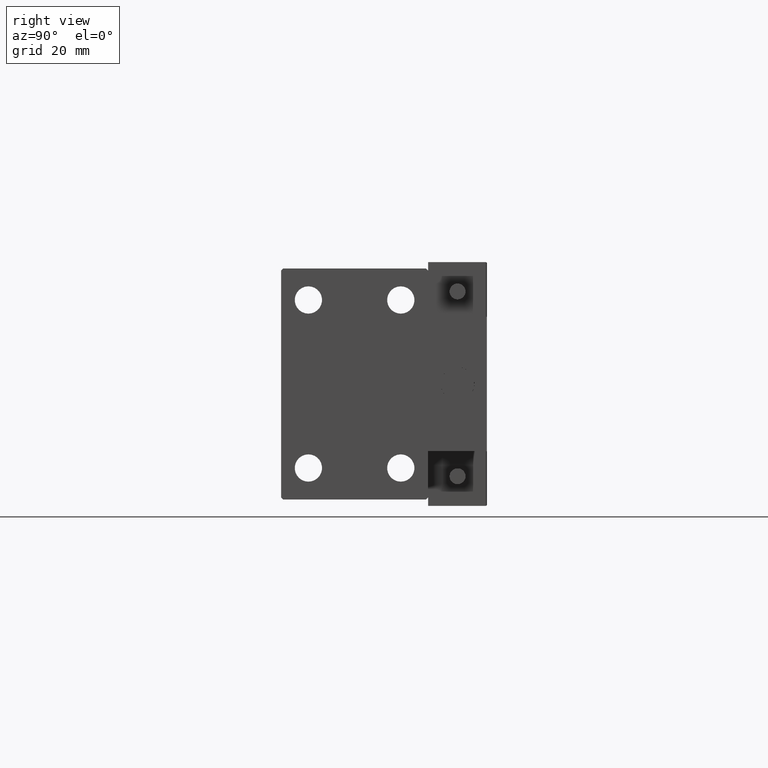
[diagram: clean part render]
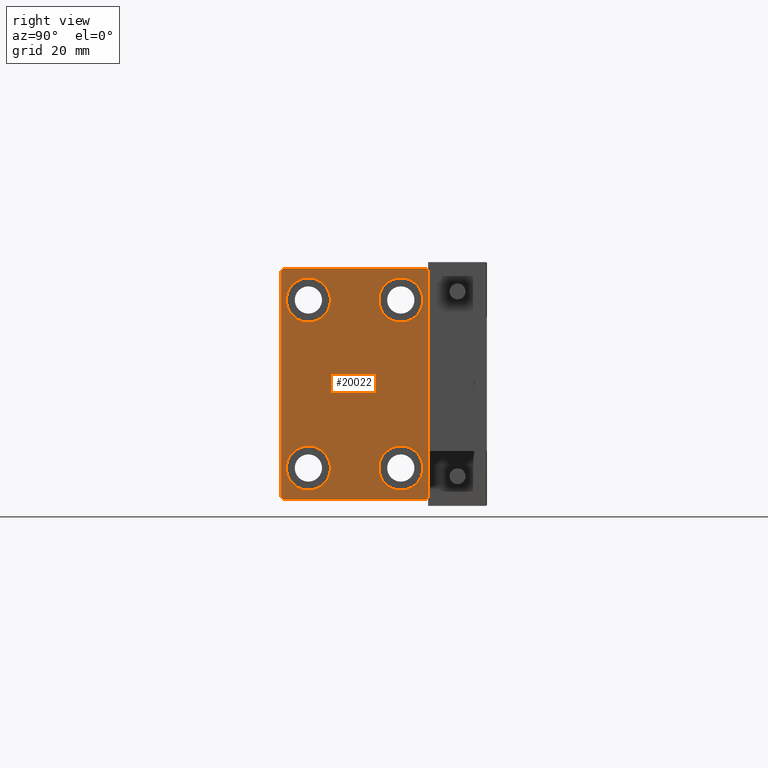
[diagram: same view with one face highlighted and labeled with its STEP entity id]
A machine part, right view. The second image highlights one B-rep face of the part: STEP entity #20022.
In plain terms, the highlighted planar face has unit normal (1, 0, 0).
Its self-contained STEP definition (entity closure, byte-faithful):
#73 = EDGE_CURVE ( 'NONE', #5430, #42371, #233, .T. ) ;
#233 = LINE ( 'NONE', #35253, #49768 ) ;
#400 = CARTESIAN_POINT ( 'NONE',  ( 86.00000000000000000, 17.00000000000000711, -27.50000000000000355 ) ) ;
#744 = VERTEX_POINT ( 'NONE', #16504 ) ;
#1340 = CARTESIAN_POINT ( 'NONE',  ( 86.00000000000000000, 17.50000000000000000, 27.50000000000000355 ) ) ;
#1959 = DIRECTION ( 'NONE',  ( 0.000000000000000000, 1.000000000000000000, 0.000000000000000000 ) ) ;
#2185 = EDGE_CURVE ( 'NONE', #36022, #744, #5288, .T. ) ;
#2590 = DIRECTION ( 'NONE',  ( -0.000000000000000000, 0.7071067811865474617, -0.7071067811865474617 ) ) ;
#3493 = DIRECTION ( 'NONE',  ( 0.000000000000000000, 0.000000000000000000, 1.000000000000000000 ) ) ;
#3564 = EDGE_CURVE ( 'NONE', #17908, #50006, #20653, .T. ) ;
#4225 = ORIENTED_EDGE ( 'NONE', *, *, #15708, .T. ) ;
#4257 = DIRECTION ( 'NONE',  ( -1.000000000000000000, -0.000000000000000000, -0.000000000000000000 ) ) ;
#4689 = DIRECTION ( 'NONE',  ( 0.000000000000000000, 0.000000000000000000, 1.000000000000000000 ) ) ;
#4805 = ORIENTED_EDGE ( 'NONE', *, *, #8051, .T. ) ;
#5288 = CIRCLE ( 'NONE', #13388, 5.250000000000000888 ) ;
#5430 = VERTEX_POINT ( 'NONE', #36375 ) ;
#5762 = VERTEX_POINT ( 'NONE', #36073 ) ;
#5937 = EDGE_CURVE ( 'NONE', #43645, #27905, #31266, .T. ) ;
#6061 = CARTESIAN_POINT ( 'NONE',  ( 86.00000000000000000, 22.25000000000000711, -22.25000000000000711 ) ) ;
#6224 = DIRECTION ( 'NONE',  ( 0.000000000000000000, 0.000000000000000000, 1.000000000000000000 ) ) ;
#6489 = EDGE_CURVE ( 'NONE', #5762, #6943, #20730, .T. ) ;
#6625 = EDGE_CURVE ( 'NONE', #27905, #43645, #9395, .T. ) ;
#6874 = ORIENTED_EDGE ( 'NONE', *, *, #47742, .T. ) ;
#6943 = VERTEX_POINT ( 'NONE', #37018 ) ;
#7230 = VECTOR ( 'NONE', #49530, 1000.000000000000000 ) ;
#7948 = VECTOR ( 'NONE', #2590, 1000.000000000000114 ) ;
#8051 = EDGE_CURVE ( 'NONE', #50006, #11998, #10636, .T. ) ;
#8676 = DIRECTION ( 'NONE',  ( -1.000000000000000000, -0.000000000000000000, -0.000000000000000000 ) ) ;
#8800 = DIRECTION ( 'NONE',  ( 0.000000000000000000, 0.000000000000000000, 1.000000000000000000 ) ) ;
#9004 = CARTESIAN_POINT ( 'NONE',  ( 86.00000000000000000, 11.00000000000000355, -20.00000000000000000 ) ) ;
#9173 = ORIENTED_EDGE ( 'NONE', *, *, #47481, .T. ) ;
#9395 = CIRCLE ( 'NONE', #27237, 5.250000000000000888 ) ;
#9564 = LINE ( 'NONE', #36722, #37117 ) ;
#9569 = FACE_BOUND ( 'NONE', #15810, .T. ) ;
#10636 = LINE ( 'NONE', #14425, #17540 ) ;
#10776 = DIRECTION ( 'NONE',  ( -1.000000000000000000, -0.000000000000000000, -0.000000000000000000 ) ) ;
#11998 = VERTEX_POINT ( 'NONE', #48551 ) ;
#12685 = ORIENTED_EDGE ( 'NONE', *, *, #2185, .T. ) ;
#13388 = AXIS2_PLACEMENT_3D ( 'NONE', #24830, #21015, #3493 ) ;
#13464 = CARTESIAN_POINT ( 'NONE',  ( 86.00000000000000000, -11.00000000000000355, -20.00000000000000000 ) ) ;
#13606 = CARTESIAN_POINT ( 'NONE',  ( 86.00000000000000000, 11.00000000000000355, -20.00000000000000000 ) ) ;
#14361 = CARTESIAN_POINT ( 'NONE',  ( 86.00000000000000000, 11.00000000000000355, -25.25000000000000000 ) ) ;
#14394 = CARTESIAN_POINT ( 'NONE',  ( 86.00000000000000000, -11.00000000000000355, 25.25000000000000000 ) ) ;
#14425 = CARTESIAN_POINT ( 'NONE',  ( 86.00000000000000000, 22.25000000000000711, 22.25000000000000711 ) ) ;
#14759 = AXIS2_PLACEMENT_3D ( 'NONE', #13606, #21751, #41519 ) ;
#15708 = EDGE_CURVE ( 'NONE', #47943, #46719, #41398, .T. ) ;
#15810 = EDGE_LOOP ( 'NONE', ( #35314, #43470 ) ) ;
#15871 = ORIENTED_EDGE ( 'NONE', *, *, #73, .T. ) ;
#16134 = ORIENTED_EDGE ( 'NONE', *, *, #50068, .T. ) ;
#16380 = CIRCLE ( 'NONE', #30966, 5.250000000000000888 ) ;
#16504 = CARTESIAN_POINT ( 'NONE',  ( 86.00000000000000000, -11.00000000000000355, -14.75000000000000000 ) ) ;
#16691 = CARTESIAN_POINT ( 'NONE',  ( 86.00000000000000000, 17.50000000000000711, -27.00000000000000355 ) ) ;
#16696 = CARTESIAN_POINT ( 'NONE',  ( 86.00000000000000000, 11.00000000000000355, -14.75000000000000000 ) ) ;
#16804 = LINE ( 'NONE', #1340, #22134 ) ;
#17528 = EDGE_CURVE ( 'NONE', #42371, #47943, #40668, .T. ) ;
#17540 = VECTOR ( 'NONE', #49929, 1000.000000000000114 ) ;
#17567 = CARTESIAN_POINT ( 'NONE',  ( 86.00000000000000000, -11.00000000000000355, -25.25000000000000000 ) ) ;
#17683 = FACE_BOUND ( 'NONE', #24083, .T. ) ;
#17908 = VERTEX_POINT ( 'NONE', #16691 ) ;
#18338 = CARTESIAN_POINT ( 'NONE',  ( 86.00000000000000000, -17.50000000000000000, 27.49999999999999645 ) ) ;
#20022 = ADVANCED_FACE ( 'NONE', ( #31746, #9569, #44847, #17683, #35550 ), #21508, .T. ) ;
#20592 = CARTESIAN_POINT ( 'NONE',  ( 86.00000000000000000, -11.00000000000000355, 20.00000000000000000 ) ) ;
#20653 = LINE ( 'NONE', #28530, #45736 ) ;
#20730 = CIRCLE ( 'NONE', #43410, 5.250000000000000888 ) ;
#21015 = DIRECTION ( 'NONE',  ( -1.000000000000000000, -0.000000000000000000, -0.000000000000000000 ) ) ;
#21347 = DIRECTION ( 'NONE',  ( 0.000000000000000000, 0.000000000000000000, 1.000000000000000000 ) ) ;
#21508 = PLANE ( 'NONE',  #35656 ) ;
#21751 = DIRECTION ( 'NONE',  ( -1.000000000000000000, -0.000000000000000000, -0.000000000000000000 ) ) ;
#22134 = VECTOR ( 'NONE', #48268, 1000.000000000000000 ) ;
#23891 = EDGE_LOOP ( 'NONE', ( #9173, #6874 ) ) ;
#24083 = EDGE_LOOP ( 'NONE', ( #12685, #44278 ) ) ;
#24830 = CARTESIAN_POINT ( 'NONE',  ( 86.00000000000000000, -11.00000000000000355, -20.00000000000000000 ) ) ;
#25832 = DIRECTION ( 'NONE',  ( 1.000000000000000000, 0.000000000000000000, 0.000000000000000000 ) ) ;
#26128 = CIRCLE ( 'NONE', #14759, 5.250000000000000888 ) ;
#26911 = ORIENTED_EDGE ( 'NONE', *, *, #50190, .T. ) ;
#27237 = AXIS2_PLACEMENT_3D ( 'NONE', #20592, #8676, #35344 ) ;
#27293 = DIRECTION ( 'NONE',  ( -1.000000000000000000, -0.000000000000000000, -0.000000000000000000 ) ) ;
#27776 = CIRCLE ( 'NONE', #44802, 5.250000000000000888 ) ;
#27905 = VERTEX_POINT ( 'NONE', #14394 ) ;
#28229 = ORIENTED_EDGE ( 'NONE', *, *, #38815, .T. ) ;
#28530 = CARTESIAN_POINT ( 'NONE',  ( 86.00000000000000000, 17.50000000000000711, -27.50000000000000355 ) ) ;
#28546 = DIRECTION ( 'NONE',  ( 0.000000000000000000, 0.000000000000000000, 1.000000000000000000 ) ) ;
#29912 = DIRECTION ( 'NONE',  ( -0.000000000000000000, 0.7071067811865474617, 0.7071067811865474617 ) ) ;
#30966 = AXIS2_PLACEMENT_3D ( 'NONE', #9004, #43013, #28546 ) ;
#31266 = CIRCLE ( 'NONE', #36892, 5.250000000000000888 ) ;
#31540 = VERTEX_POINT ( 'NONE', #16696 ) ;
#31746 = FACE_BOUND ( 'NONE', #23891, .T. ) ;
#32205 = EDGE_LOOP ( 'NONE', ( #26911, #15871, #50015, #4225, #47510, #28229, #46960, #4805 ) ) ;
#32589 = DIRECTION ( 'NONE',  ( 0.000000000000000000, -1.261617073437677752E-16, 1.000000000000000000 ) ) ;
#33302 = CARTESIAN_POINT ( 'NONE',  ( 86.00000000000000000, -22.25000000000000355, -22.25000000000000355 ) ) ;
#34408 = EDGE_CURVE ( 'NONE', #46719, #47699, #9564, .T. ) ;
#35215 = CARTESIAN_POINT ( 'NONE',  ( 86.00000000000000000, -17.50000000000000000, 26.99999999999999645 ) ) ;
#35253 = CARTESIAN_POINT ( 'NONE',  ( 86.00000000000000000, -22.24999999999999645, 22.24999999999999645 ) ) ;
#35314 = ORIENTED_EDGE ( 'NONE', *, *, #5937, .T. ) ;
#35344 = DIRECTION ( 'NONE',  ( 0.000000000000000000, 0.000000000000000000, 1.000000000000000000 ) ) ;
#35550 = FACE_OUTER_BOUND ( 'NONE', #32205, .T. ) ;
#35656 = AXIS2_PLACEMENT_3D ( 'NONE', #41281, #25832, #47206 ) ;
#36022 = VERTEX_POINT ( 'NONE', #17567 ) ;
#36073 = CARTESIAN_POINT ( 'NONE',  ( 86.00000000000000000, 11.00000000000000355, 25.25000000000000000 ) ) ;
#36375 = CARTESIAN_POINT ( 'NONE',  ( 86.00000000000000000, -17.00000000000000000, 27.49999999999999645 ) ) ;
#36722 = CARTESIAN_POINT ( 'NONE',  ( 86.00000000000000000, -17.50000000000000000, -27.50000000000000355 ) ) ;
#36892 = AXIS2_PLACEMENT_3D ( 'NONE', #37323, #41116, #21347 ) ;
#37018 = CARTESIAN_POINT ( 'NONE',  ( 86.00000000000000000, 11.00000000000000355, 14.75000000000000000 ) ) ;
#37117 = VECTOR ( 'NONE', #1959, 1000.000000000000000 ) ;
#37207 = CARTESIAN_POINT ( 'NONE',  ( 86.00000000000000000, -17.00000000000000000, -27.50000000000000355 ) ) ;
#37323 = CARTESIAN_POINT ( 'NONE',  ( 86.00000000000000000, -11.00000000000000355, 20.00000000000000000 ) ) ;
#38815 = EDGE_CURVE ( 'NONE', #47699, #17908, #45129, .T. ) ;
#39013 = CARTESIAN_POINT ( 'NONE',  ( 86.00000000000000000, 11.00000000000000355, 20.00000000000000000 ) ) ;
#39140 = CIRCLE ( 'NONE', #40758, 5.250000000000000888 ) ;
#39292 = DIRECTION ( 'NONE',  ( 0.000000000000000000, -0.7071067811865474617, -0.7071067811865474617 ) ) ;
#40198 = ORIENTED_EDGE ( 'NONE', *, *, #6489, .T. ) ;
#40451 = CARTESIAN_POINT ( 'NONE',  ( 86.00000000000000000, -17.50000000000000000, -27.00000000000000355 ) ) ;
#40668 = LINE ( 'NONE', #18338, #7230 ) ;
#40715 = CARTESIAN_POINT ( 'NONE',  ( 86.00000000000000000, -11.00000000000000355, 14.75000000000000000 ) ) ;
#40758 = AXIS2_PLACEMENT_3D ( 'NONE', #45538, #10776, #6224 ) ;
#41116 = DIRECTION ( 'NONE',  ( -1.000000000000000000, -0.000000000000000000, -0.000000000000000000 ) ) ;
#41281 = CARTESIAN_POINT ( 'NONE',  ( 86.00000000000000000, 0.000000000000000000, 0.000000000000000000 ) ) ;
#41398 = LINE ( 'NONE', #33302, #7948 ) ;
#41519 = DIRECTION ( 'NONE',  ( 0.000000000000000000, 0.000000000000000000, 1.000000000000000000 ) ) ;
#42371 = VERTEX_POINT ( 'NONE', #35215 ) ;
#43013 = DIRECTION ( 'NONE',  ( -1.000000000000000000, -0.000000000000000000, -0.000000000000000000 ) ) ;
#43410 = AXIS2_PLACEMENT_3D ( 'NONE', #39013, #4257, #8800 ) ;
#43470 = ORIENTED_EDGE ( 'NONE', *, *, #6625, .T. ) ;
#43645 = VERTEX_POINT ( 'NONE', #40715 ) ;
#44278 = ORIENTED_EDGE ( 'NONE', *, *, #45859, .T. ) ;
#44802 = AXIS2_PLACEMENT_3D ( 'NONE', #13464, #27293, #4689 ) ;
#44847 = FACE_BOUND ( 'NONE', #46346, .T. ) ;
#45129 = LINE ( 'NONE', #6061, #46996 ) ;
#45538 = CARTESIAN_POINT ( 'NONE',  ( 86.00000000000000000, 11.00000000000000355, 20.00000000000000000 ) ) ;
#45736 = VECTOR ( 'NONE', #32589, 1000.000000000000000 ) ;
#45859 = EDGE_CURVE ( 'NONE', #744, #36022, #27776, .T. ) ;
#46346 = EDGE_LOOP ( 'NONE', ( #16134, #40198 ) ) ;
#46719 = VERTEX_POINT ( 'NONE', #37207 ) ;
#46731 = VERTEX_POINT ( 'NONE', #14361 ) ;
#46960 = ORIENTED_EDGE ( 'NONE', *, *, #3564, .T. ) ;
#46996 = VECTOR ( 'NONE', #29912, 1000.000000000000114 ) ;
#47206 = DIRECTION ( 'NONE',  ( 0.000000000000000000, 0.000000000000000000, -1.000000000000000000 ) ) ;
#47481 = EDGE_CURVE ( 'NONE', #46731, #31540, #26128, .T. ) ;
#47510 = ORIENTED_EDGE ( 'NONE', *, *, #34408, .T. ) ;
#47699 = VERTEX_POINT ( 'NONE', #400 ) ;
#47742 = EDGE_CURVE ( 'NONE', #31540, #46731, #16380, .T. ) ;
#47943 = VERTEX_POINT ( 'NONE', #40451 ) ;
#48268 = DIRECTION ( 'NONE',  ( 0.000000000000000000, -1.000000000000000000, -1.982541115402065110E-16 ) ) ;
#48551 = CARTESIAN_POINT ( 'NONE',  ( 86.00000000000000000, 17.00000000000001421, 27.50000000000000355 ) ) ;
#48833 = CARTESIAN_POINT ( 'NONE',  ( 86.00000000000000000, 17.50000000000000000, 27.00000000000001776 ) ) ;
#49530 = DIRECTION ( 'NONE',  ( 0.000000000000000000, 0.000000000000000000, -1.000000000000000000 ) ) ;
#49768 = VECTOR ( 'NONE', #39292, 1000.000000000000114 ) ;
#49929 = DIRECTION ( 'NONE',  ( -0.000000000000000000, -0.7071067811865474617, 0.7071067811865474617 ) ) ;
#50006 = VERTEX_POINT ( 'NONE', #48833 ) ;
#50015 = ORIENTED_EDGE ( 'NONE', *, *, #17528, .T. ) ;
#50068 = EDGE_CURVE ( 'NONE', #6943, #5762, #39140, .T. ) ;
#50190 = EDGE_CURVE ( 'NONE', #11998, #5430, #16804, .T. ) ;